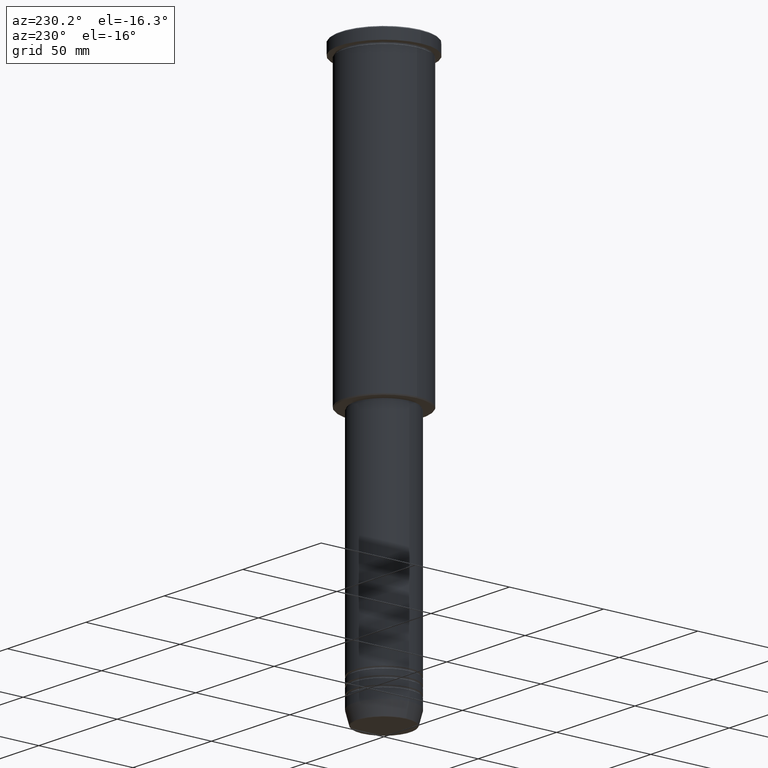
[diagram: clean part render]
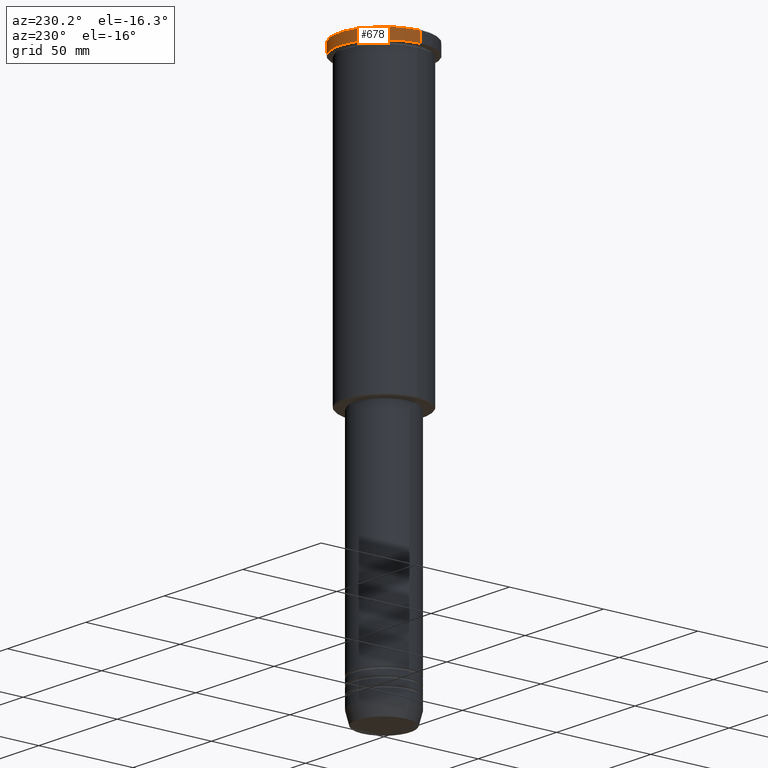
[diagram: same view with one face highlighted and labeled with its STEP entity id]
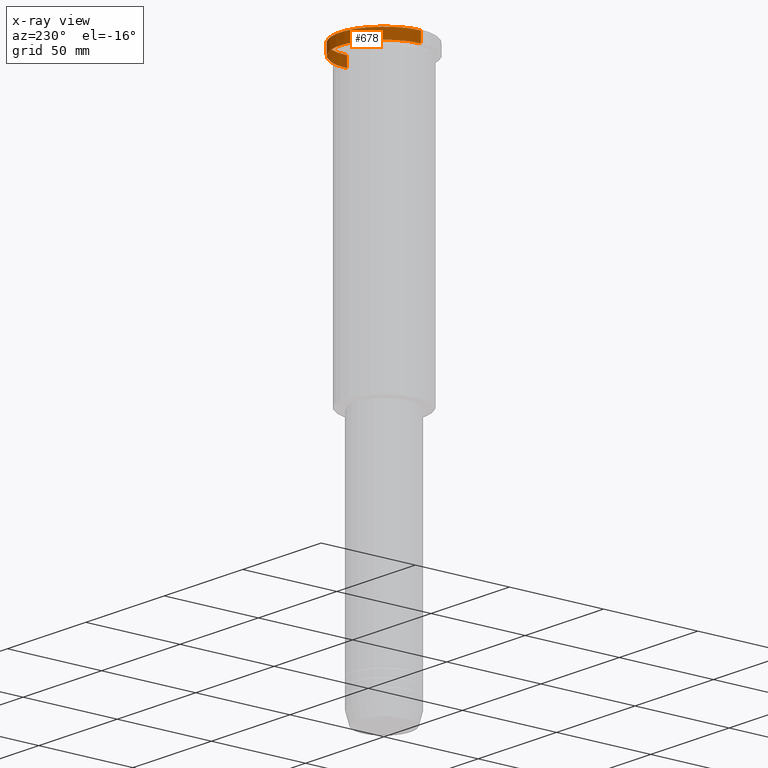
[diagram: x-ray of the same camera — body ghosted, the highlighted face saturated]
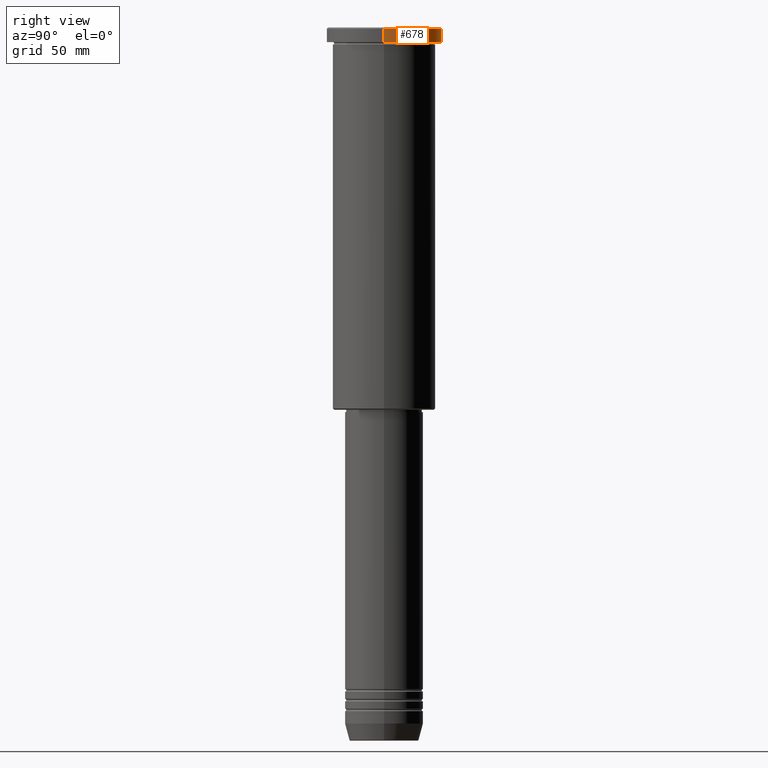
[diagram: same view with one face highlighted and labeled with its STEP entity id]
A machine part, auxiliary view. The second image highlights one B-rep face of the part: STEP entity #678.
The next image is the same camera in x-ray: the body ghosted, the highlighted face saturated — about 4% of this face is hidden behind the body in this view.
A second angle (right view) of the same face is appended — the face is thin or edge-on in the first view.
In plain terms, the highlighted cylindrical surface (partial cylindrical patch) has radius 23.5 mm, axis along (-0, -0, 1).
Its self-contained STEP definition (entity closure, byte-faithful):
#8 = EDGE_CURVE ( 'NONE', #1156, #453, #573, .T. ) ;
#34 = DIRECTION ( 'NONE',  ( -0.000000000000000000, -0.000000000000000000, 1.000000000000000000 ) ) ;
#89 = ORIENTED_EDGE ( 'NONE', *, *, #753, .T. ) ;
#95 = CYLINDRICAL_SURFACE ( 'NONE', #305, 23.50000000000000000 ) ;
#106 = DIRECTION ( 'NONE',  ( -0.000000000000000000, -0.000000000000000000, 1.000000000000000000 ) ) ;
#107 = EDGE_CURVE ( 'NONE', #712, #453, #133, .T. ) ;
#111 = CARTESIAN_POINT ( 'NONE',  ( 23.50000000000000000, 0.000000000000000000, 0.000000000000000000 ) ) ;
#130 = ORIENTED_EDGE ( 'NONE', *, *, #807, .T. ) ;
#133 = CIRCLE ( 'NONE', #811, 23.50000000000000000 ) ;
#209 = ORIENTED_EDGE ( 'NONE', *, *, #8, .F. ) ;
#235 = CIRCLE ( 'NONE', #1029, 23.50000000000000000 ) ;
#305 = AXIS2_PLACEMENT_3D ( 'NONE', #1025, #106, #752 ) ;
#312 = DIRECTION ( 'NONE',  ( 1.000000000000000000, 0.000000000000000000, 0.000000000000000000 ) ) ;
#318 = VERTEX_POINT ( 'NONE', #1130 ) ;
#396 = CARTESIAN_POINT ( 'NONE',  ( 0.000000000000000000, 0.000000000000000000, -0.5000000000000281997 ) ) ;
#413 = VECTOR ( 'NONE', #847, 1000.000000000000000 ) ;
#453 = VERTEX_POINT ( 'NONE', #1005 ) ;
#479 = DIRECTION ( 'NONE',  ( -0.000000000000000000, -0.000000000000000000, 1.000000000000000000 ) ) ;
#480 = CARTESIAN_POINT ( 'NONE',  ( -23.50000000000000000, 2.877919977996280320E-15, -0.5000000000000281997 ) ) ;
#559 = ORIENTED_EDGE ( 'NONE', *, *, #107, .T. ) ;
#573 = LINE ( 'NONE', #111, #413 ) ;
#589 = LINE ( 'NONE', #680, #835 ) ;
#664 = EDGE_LOOP ( 'NONE', ( #130, #89, #559, #209 ) ) ;
#678 = ADVANCED_FACE ( 'NONE', ( #1038 ), #95, .T. ) ;
#680 = CARTESIAN_POINT ( 'NONE',  ( -23.50000000000000000, 2.877919977996280320E-15, 0.000000000000000000 ) ) ;
#712 = VERTEX_POINT ( 'NONE', #480 ) ;
#752 = DIRECTION ( 'NONE',  ( 1.000000000000000000, 0.000000000000000000, 0.000000000000000000 ) ) ;
#753 = EDGE_CURVE ( 'NONE', #318, #712, #589, .T. ) ;
#803 = DIRECTION ( 'NONE',  ( 1.000000000000000000, 0.000000000000000000, 0.000000000000000000 ) ) ;
#807 = EDGE_CURVE ( 'NONE', #1156, #318, #235, .T. ) ;
#811 = AXIS2_PLACEMENT_3D ( 'NONE', #396, #948, #803 ) ;
#835 = VECTOR ( 'NONE', #479, 1000.000000000000000 ) ;
#847 = DIRECTION ( 'NONE',  ( -0.000000000000000000, -0.000000000000000000, 1.000000000000000000 ) ) ;
#948 = DIRECTION ( 'NONE',  ( 0.000000000000000000, 0.000000000000000000, -1.000000000000000000 ) ) ;
#1005 = CARTESIAN_POINT ( 'NONE',  ( 23.50000000000000000, 0.000000000000000000, -0.5000000000000281997 ) ) ;
#1025 = CARTESIAN_POINT ( 'NONE',  ( 0.000000000000000000, 0.000000000000000000, 0.000000000000000000 ) ) ;
#1029 = AXIS2_PLACEMENT_3D ( 'NONE', #1142, #34, #312 ) ;
#1038 = FACE_OUTER_BOUND ( 'NONE', #664, .T. ) ;
#1064 = CARTESIAN_POINT ( 'NONE',  ( 23.50000000000000000, 0.000000000000000000, -5.999999999999993783 ) ) ;
#1130 = CARTESIAN_POINT ( 'NONE',  ( -23.50000000000000000, 2.877919977996280320E-15, -5.999999999999993783 ) ) ;
#1142 = CARTESIAN_POINT ( 'NONE',  ( 0.000000000000000000, 0.000000000000000000, -5.999999999999993783 ) ) ;
#1156 = VERTEX_POINT ( 'NONE', #1064 ) ;